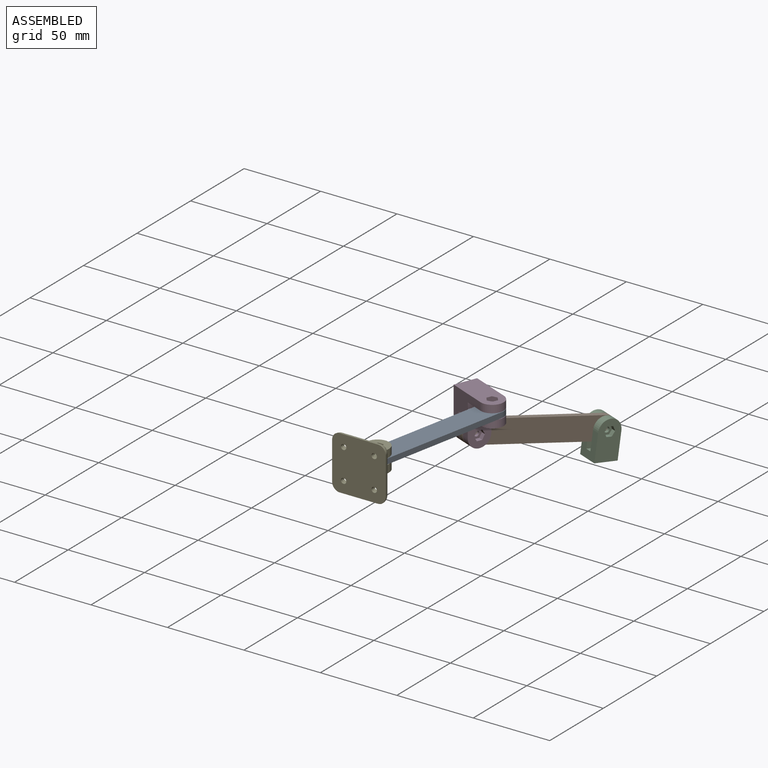
[diagram: assembled view]
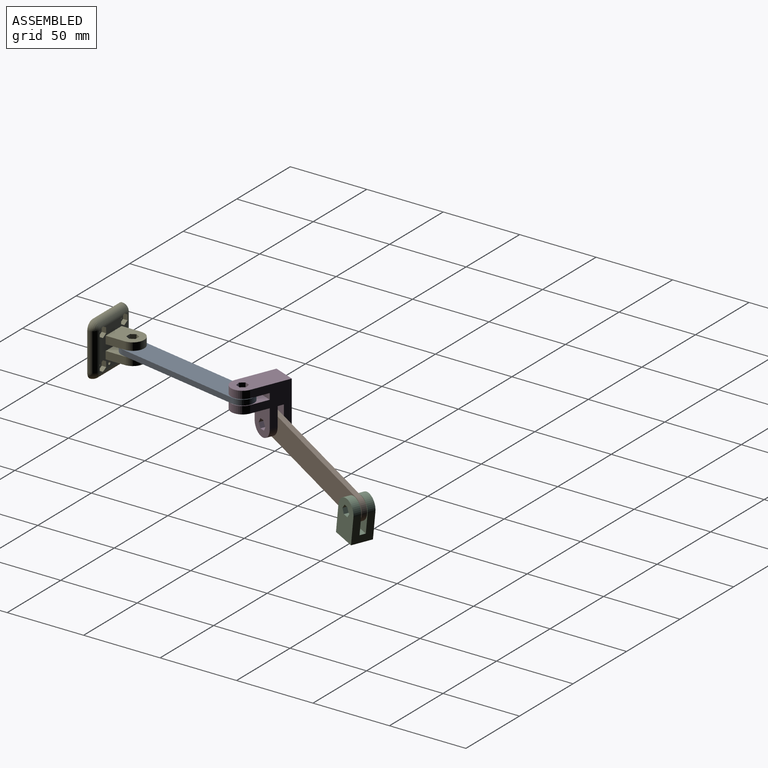
[diagram: assembled view, second angle]
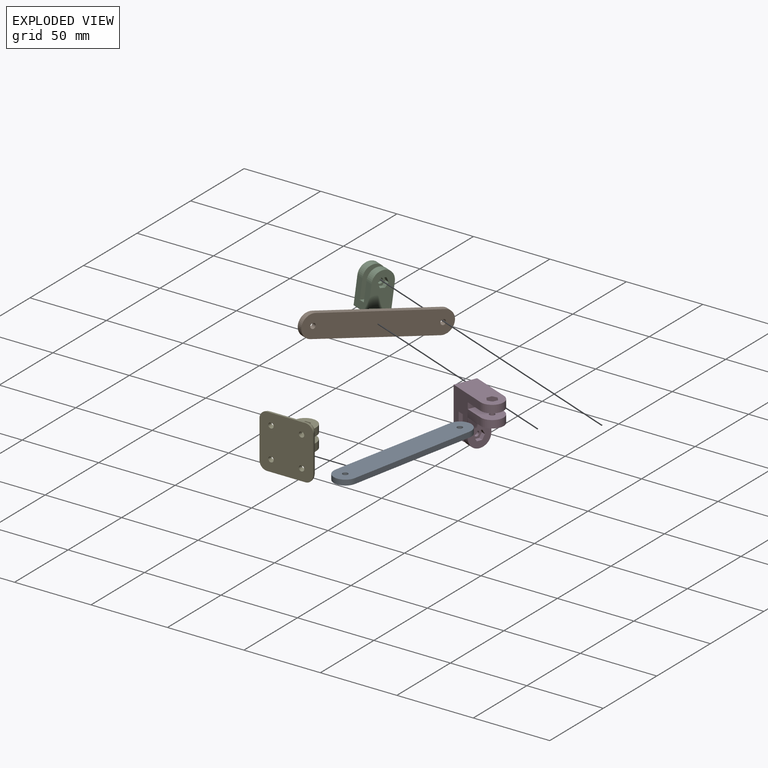
[diagram: exploded view]
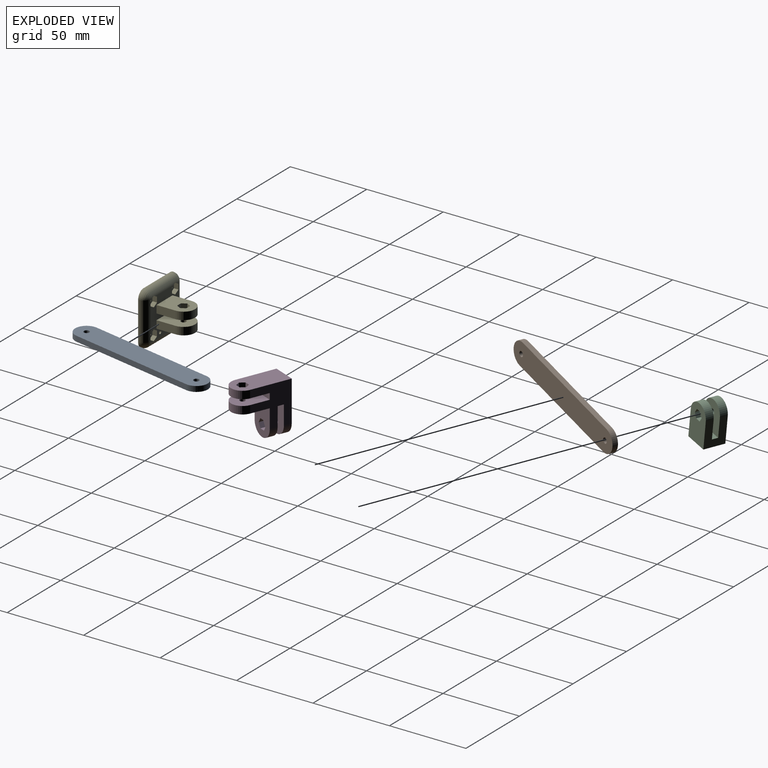
[diagram: exploded view, second angle]
ASSEMBLY  parts=5 mates=4
PART A: 8 faces, bbox 15x100x3.5 mm
  f0: plane 85x3.5mm, normal (-1,0,0), area 297.5mm2, adj f1,f4,f6,f7
  f1: cylinder r=7.5mm len=15mm, axis (0,0,-1), area 82.5mm2, adj f0,f2,f6,f7
  f2: plane 85x3.5mm, normal (1,0,0), area 297.5mm2, adj f1,f4,f6,f7
  f3: cylinder r=1.75mm len=3.5mm, axis (0,0,-1), area 38.5mm2, adj f6,f7
  f4: cylinder r=7.5mm len=15mm, axis (0,0,-1), area 82.5mm2, adj f0,f2,f6,f7
  f5: cylinder r=1.75mm len=3.5mm, axis (0,0,-1), area 38.5mm2, adj f6,f7
  f6: plane 100x15mm, normal (0,0,1), area 1432.5mm2, adj f0,f1,f2,f3,f4,f5
  f7: plane 100x15mm, normal (0,0,-1), area 1432.5mm2, adj f0,f1,f2,f3,f4,f5
PART B: same geometry as A
PART C: 21 faces, bbox 15x25x14 mm
  f0: plane 6.93x6mm, normal (0,0,1), area 21.6mm2, adj f2,f4,f5,f6,f7,f8,f9
  f1: plane 6x6mm, normal (0,0,-1), area 18.7mm2, adj f3,f10
  f2: cylinder r=1.75mm len=3.5mm, axis (0,0,-1), area 22mm2, adj f0,f12
  f3: cylinder r=1.75mm len=3.5mm, axis (0,0,-1), area 22mm2, adj f1,f14
  f4: plane 3.46x3mm, normal (0,1,0), area 10.4mm2, adj f0,f5,f9,f19
  f5: plane 3x3mm, normal (-0.87,0.5,0), area 10.4mm2, adj f0,f4,f6,f19
  f6: plane 3x3mm, normal (-0.87,-0.5,0), area 10.4mm2, adj f0,f5,f7,f19
  f7: plane 3.46x3mm, normal (0,-1,0), area 10.4mm2, adj f0,f6,f8,f19
  f8: plane 3x3mm, normal (0.87,-0.5,0), area 10.4mm2, adj f0,f7,f9,f19
  f9: plane 3x3mm, normal (0.87,0.5,0), area 10.4mm2, adj f0,f4,f8,f19
  f10: cylinder r=3mm len=6mm, axis (0,0,-1), area 56.5mm2, adj f1,f17
  f11: cylinder r=7.5mm len=15mm, axis (0,0,-1), area 117.8mm2, adj f12,f16,f18,f19
  f12: plane 20x15mm, normal (0,0,-1), area 266.2mm2, adj f2,f11,f13,f16,f18
  f13: plane 15x4mm, normal (0,1,0), area 60mm2, adj f12,f14,f16,f18
  f14: plane 20x15mm, normal (0,0,1), area 266.2mm2, adj f3,f13,f15,f16,f18
  f15: cylinder r=7.5mm len=15mm, axis (0,0,-1), area 117.8mm2, adj f14,f16,f17,f18
  f16: plane 17.5x14mm, normal (1,0,0), area 195mm2, adj f11,f12,f13,f14,f15,f17,f19,f20
  f17: plane 25x15mm, normal (0,0,-1), area 322.6mm2, adj f10,f15,f16,f18,f20
  f18: plane 17.5x14mm, normal (-1,0,0), area 195mm2, adj f11,f12,f13,f14,f15,f17,f19,f20
  f19: plane 25x15mm, normal (0,0,1), area 319.7mm2, adj f4,f5,f6,f7,f8,f9,f11,f16
  f20: plane 15x14mm, normal (0,-1,0), area 210mm2, adj f16,f17,f18,f19
PART D: 38 faces, bbox 15x34x34 mm
  f0: cylinder r=1.75mm len=3.5mm, axis (0,-1,0), area 22mm2, adj f3,f37
  f1: cylinder r=1.75mm len=3.5mm, axis (0,-1,0), area 22mm2, adj f4,f30
  f2: plane 34x15mm, normal (0,-1,0), area 454.7mm2, adj f5,f8,f23,f28,f31,f32,f33,f34
  f3: plane 20x15mm, normal (0,1,0), area 266.2mm2, adj f0,f5,f6,f8,f28
  f4: plane 20x15mm, normal (0,-1,0), area 266.2mm2, adj f1,f5,f6,f8,f27
  f5: plane 26.5x26.5mm, normal (-1,0,0), area 446mm2, adj f2,f3,f4,f6,f9,f10,f11,f19
  f6: plane 15x4mm, normal (0,0,1), area 60mm2, adj f3,f4,f5,f8
  f7: cylinder r=1.75mm len=3.5mm, axis (0,0,-1), area 22mm2, adj f11,f18
  f8: plane 26.5x26.5mm, normal (1,0,0), area 446mm2, adj f2,f3,f4,f6,f9,f10,f11,f19
  f9: cylinder r=7.5mm len=15mm, axis (0,0,-1), area 117.8mm2, adj f5,f8,f10,f11
  f10: plane 20x15mm, normal (0,0,1), area 244.7mm2, adj f5,f8,f9,f12,f13,f14,f15,f16
  f11: plane 20x15mm, normal (0,0,-1), area 266.2mm2, adj f5,f7,f8,f9,f19
  f12: plane 3x3mm, normal (-0.87,-0.5,0), area 10.4mm2, adj f10,f13,f17,f18
  f13: plane 3.46x3mm, normal (0,-1,0), area 10.4mm2, adj f10,f12,f14,f18
  f14: plane 3x3mm, normal (0.87,-0.5,0), area 10.4mm2, adj f10,f13,f15,f18
  f15: plane 3x3mm, normal (0.87,0.5,0), area 10.4mm2, adj f10,f14,f16,f18
  f16: plane 3.46x3mm, normal (0,1,0), area 10.4mm2, adj f10,f15,f17,f18
  f17: plane 3x3mm, normal (-0.87,0.5,0), area 10.4mm2, adj f10,f12,f16,f18
  f18: plane 6.93x6mm, normal (0,0,1), area 21.6mm2, adj f7,f12,f13,f14,f15,f16,f17
  f19: plane 15x4mm, normal (0,1,0), area 60mm2, adj f5,f8,f11,f22
  f20: cylinder r=1.75mm len=3.5mm, axis (0,0,-1), area 22mm2, adj f22,f25
  f21: cylinder r=7.5mm len=15mm, axis (0,0,-1), area 117.8mm2, adj f5,f8,f22,f23
  f22: plane 20x15mm, normal (0,0,1), area 266.2mm2, adj f5,f8,f19,f20,f21
  f23: plane 34x15mm, normal (0,0,-1), area 457.6mm2, adj f2,f5,f8,f21,f24
  f24: cylinder r=3mm len=6mm, axis (0,0,-1), area 56.5mm2, adj f23,f25
  f25: plane 6x6mm, normal (0,0,-1), area 18.7mm2, adj f20,f24
  f26: plane 20x15mm, normal (0,1,0), area 247.6mm2, adj f5,f8,f10,f27,f29
  f27: cylinder r=7.5mm len=15mm, axis (0,-1,0), area 117.8mm2, adj f4,f5,f8,f26
  f28: cylinder r=7.5mm len=15mm, axis (0,-1,0), area 117.8mm2, adj f2,f3,f5,f8
  f29: cylinder r=3mm len=6mm, axis (0,1,0), area 56.5mm2, adj f26,f30
  f30: plane 6x6mm, normal (0,1,0), area 18.7mm2, adj f1,f29
  f31: plane 3x3mm, normal (0.87,0,0.5), area 10.4mm2, adj f2,f32,f36,f37
  f32: plane 3.46x3mm, normal (0,0,1), area 10.4mm2, adj f2,f31,f33,f37
  f33: plane 3x3mm, normal (-0.87,0,0.5), area 10.4mm2, adj f2,f32,f34,f37
  f34: plane 3x3mm, normal (-0.87,0,-0.5), area 10.4mm2, adj f2,f33,f35,f37
  f35: plane 3.46x3mm, normal (0,0,-1), area 10.4mm2, adj f2,f34,f36,f37
  f36: plane 3x3mm, normal (0.87,0,-0.5), area 10.4mm2, adj f2,f31,f35,f37
  f37: plane 6.93x6mm, normal (0,-1,0), area 21.6mm2, adj f0,f31,f32,f33,f34,f35,f36
PART E: 69 faces, bbox 39.6x35x25 mm
  f0: cylinder r=1.75mm len=3.5mm, axis (1,0,0), area 22mm2, adj f4,f66
  f1: cylinder r=1.75mm len=3.5mm, axis (1,0,0), area 22mm2, adj f2,f59
  f2: plane 20x15mm, normal (-1,0,0), area 266.2mm2, adj f1,f5,f7,f9,f57
  f3: plane 20x15mm, normal (1,0,0), area 247.6mm2, adj f5,f7,f9,f57,f58
  f4: plane 20x15mm, normal (1,0,0), area 266.2mm2, adj f0,f6,f8,f9,f56
  f5: plane 12.5x5mm, normal (0,1,0), area 62.5mm2, adj f2,f3,f9,f57
  f6: plane 12.5x5mm, normal (0,1,0), area 62.5mm2, adj f4,f9,f55,f56
  f7: plane 12.5x5mm, normal (0,-1,0), area 62.5mm2, adj f2,f3,f9,f57
  f8: plane 12.5x5mm, normal (0,-1,0), area 62.5mm2, adj f4,f9,f55,f56
  f9: plane 25x25mm, normal (0,0,1), area 360.3mm2, adj f2,f3,f4,f5,f6,f7,f8,f19
  f10: plane 0.83x0.48mm, normal (0,0,1), area 0.2mm2, adj f26,f48,f49
  f11: plane 0.83x0.48mm, normal (0,0,1), area 0.2mm2, adj f38,f49,f53
  f12: plane 0.83x0.48mm, normal (0,0,1), area 0.2mm2, adj f24,f48,f52
  f13: cylinder r=1.75mm len=3.5mm, axis (0,0,-1), area 22mm2, adj f18,f39
  f14: cylinder r=1.75mm len=3.5mm, axis (0,0,-1), area 22mm2, adj f18,f32
  f15: cylinder r=1.75mm len=3.5mm, axis (0,0,-1), area 22mm2, adj f18,f25
  f16: cylinder r=1.75mm len=3.5mm, axis (0,0,-1), area 22mm2, adj f18,f46
  f17: plane 0.83x0.48mm, normal (0,0,1), area 0.2mm2, adj f43,f52,f53
  f18: plane 35x35mm, normal (0,0,-1), area 1165.1mm2, adj f13,f14,f15,f16,f47,f48,f49,f50
  f19: plane 3.01x3.01mm, normal (0.87,0.5,0), area 10.3mm2, adj f9,f20,f24,f25,f52
  f20: plane 3.46x3mm, normal (0,1,0), area 10.4mm2, adj f9,f19,f21,f25
  f21: plane 3x3mm, normal (-0.87,0.5,0), area 10.4mm2, adj f9,f20,f22,f25
  f22: plane 3x3mm, normal (-0.87,-0.5,0), area 10.4mm2, adj f9,f21,f23,f25,f48
  f23: plane 3.46x2.98mm, normal (0,-1,0), area 10.3mm2, adj f22,f24,f25,f48
  f24: plane 3.01x3.01mm, normal (0.87,-0.5,0), area 10.3mm2, adj f12,f19,f23,f25,f48,f52
  f25: plane 6.93x6mm, normal (0,0,1), area 21.6mm2, adj f15,f19,f20,f21,f22,f23,f24
  f26: plane 3.01x3.01mm, normal (-0.87,-0.5,0), area 10.3mm2, adj f10,f27,f31,f32,f48,f49
  f27: plane 3.46x2.98mm, normal (0,-1,0), area 10.3mm2, adj f26,f28,f32,f48
  f28: plane 3x3mm, normal (0.87,-0.5,0), area 10.4mm2, adj f9,f27,f29,f32,f48
  f29: plane 3x3mm, normal (0.87,0.5,0), area 10.4mm2, adj f9,f28,f30,f32
  f30: plane 3.46x3mm, normal (0,1,0), area 10.4mm2, adj f9,f29,f31,f32
  f31: plane 3.01x3.01mm, normal (-0.87,0.5,0), area 10.3mm2, adj f9,f26,f30,f32,f49
  f32: plane 6.93x6mm, normal (0,0,1), area 21.6mm2, adj f14,f26,f27,f28,f29,f30,f31
  f33: plane 3.01x3.01mm, normal (-0.87,-0.5,0), area 10.3mm2, adj f9,f34,f38,f39,f49
  f34: plane 3.46x3mm, normal (0,-1,0), area 10.4mm2, adj f9,f33,f35,f39
  f35: plane 3x3mm, normal (0.87,-0.5,0), area 10.4mm2, adj f9,f34,f36,f39
  f36: plane 3x3mm, normal (0.87,0.5,0), area 10.4mm2, adj f9,f35,f37,f39,f53
  f37: plane 3.46x2.98mm, normal (0,1,0), area 10.3mm2, adj f36,f38,f39,f53
  f38: plane 3.01x3.01mm, normal (-0.87,0.5,0), area 10.3mm2, adj f11,f33,f37,f39,f49,f53
  f39: plane 6.93x6mm, normal (0,0,1), area 21.6mm2, adj f13,f33,f34,f35,f36,f37,f38
  f40: plane 3x3mm, normal (-0.87,-0.5,0), area 10.4mm2, adj f9,f41,f45,f46
  f41: plane 3.46x3mm, normal (0,-1,0), area 10.4mm2, adj f9,f40,f42,f46
  f42: plane 3.01x3.01mm, normal (0.87,-0.5,0), area 10.3mm2, adj f9,f41,f43,f46,f52
  f43: plane 3.01x3.01mm, normal (0.87,0.5,0), area 10.3mm2, adj f17,f42,f44,f46,f52,f53
  f44: plane 3.46x2.98mm, normal (0,1,0), area 10.3mm2, adj f43,f45,f46,f53
  f45: plane 3x3mm, normal (-0.87,0.5,0), area 10.4mm2, adj f9,f40,f44,f46,f53
  f46: plane 6.93x6mm, normal (0,0,1), area 21.6mm2, adj f16,f40,f41,f42,f43,f44,f45
  f47: sphere r=5mm, area 39.3mm2, adj f18,f48,f49
  f48: cylinder r=5mm len=25mm, axis (1,0,0), area 192.6mm2, adj f9,f10,f12,f18,f22,f23,f24,f26
  f49: cylinder r=5mm len=25mm, axis (0,-1,0), area 189.1mm2, adj f9,f10,f11,f18,f26,f31,f33,f38
  f50: sphere r=5mm, area 39.3mm2, adj f18,f48,f52
  f51: sphere r=5mm, area 39.3mm2, adj f18,f49,f53
  f52: cylinder r=5mm len=25mm, axis (0,1,0), area 193.1mm2, adj f9,f12,f17,f18,f19,f24,f42,f43
  f53: cylinder r=5mm len=25mm, axis (-1,0,0), area 192.6mm2, adj f9,f11,f17,f18,f36,f37,f38,f43
  f54: sphere r=5mm, area 39.3mm2, adj f18,f52,f53
  f55: plane 20x15mm, normal (-1,0,0), area 244.7mm2, adj f6,f8,f9,f56,f60,f61,f62,f63
  f56: cylinder r=7.5mm len=15mm, axis (1,0,0), area 117.8mm2, adj f4,f6,f8,f55
  f57: cylinder r=7.5mm len=15mm, axis (1,0,0), area 117.8mm2, adj f2,f3,f5,f7
  f58: cylinder r=3mm len=6mm, axis (1,0,0), area 56.5mm2, adj f3,f59
  f59: plane 6x6mm, normal (1,0,0), area 18.7mm2, adj f1,f58
  f60: plane 3x3mm, normal (0,0.87,-0.5), area 10.4mm2, adj f55,f61,f65,f66
  f61: plane 3.46x3mm, normal (0,0,-1), area 10.4mm2, adj f55,f60,f62,f66
  f62: plane 3x3mm, normal (0,-0.87,-0.5), area 10.4mm2, adj f55,f61,f63,f66
  f63: plane 3x3mm, normal (0,-0.87,0.5), area 10.4mm2, adj f55,f62,f64,f66
  f64: plane 3.46x3mm, normal (0,0,1), area 10.4mm2, adj f55,f63,f65,f66
  f65: plane 3x3mm, normal (0,0.87,0.5), area 10.4mm2, adj f55,f60,f64,f66
  f66: plane 6.93x6mm, normal (-1,0,0), area 21.6mm2, adj f0,f60,f61,f62,f63,f64,f65
  f67: torus R=2mm, axis (0,-1,0), area 19.6mm2, adj f9,f68
  f68: bspline ~9.66x4mm, area 24.7mm2, adj f49,f67
PLACE A rot(axis=(0,0,1),168.8deg) t=(17.26,175.72,21.68)mm
PLACE B rot(axis=(0.72,-0.06,0.69),155.5deg) t=(22.34,259.89,-23.64)mm
PLACE C rot(axis=(0.71,0.55,0.45),104.4deg) t=(11.87,248.15,-26.02)mm
PLACE D rot(axis=(-0.43,0.64,-0.64),133.6deg) t=(-13.24,186.8,16.43)mm
PLACE E rot(axis=(-0.58,0.58,0.58),120deg) t=(9.42,68.95,40.93)mm fixed
MATE revolute C.f2 <-> B.f1  axis (-0.93,0.38,0) through (19.96,254.73,-14.68)mm
MATE revolute B.f3 <-> D.f7  axis (-0.93,0.38,0) through (-7.98,176.55,3.93)mm
MATE revolute E.f0 <-> A.f3  axis (0,0,-1) through (-8.08,86.45,25.43)mm
MATE revolute D.f0 <-> A.f1  axis (0,0,1) through (8.45,169.83,21.43)mm
